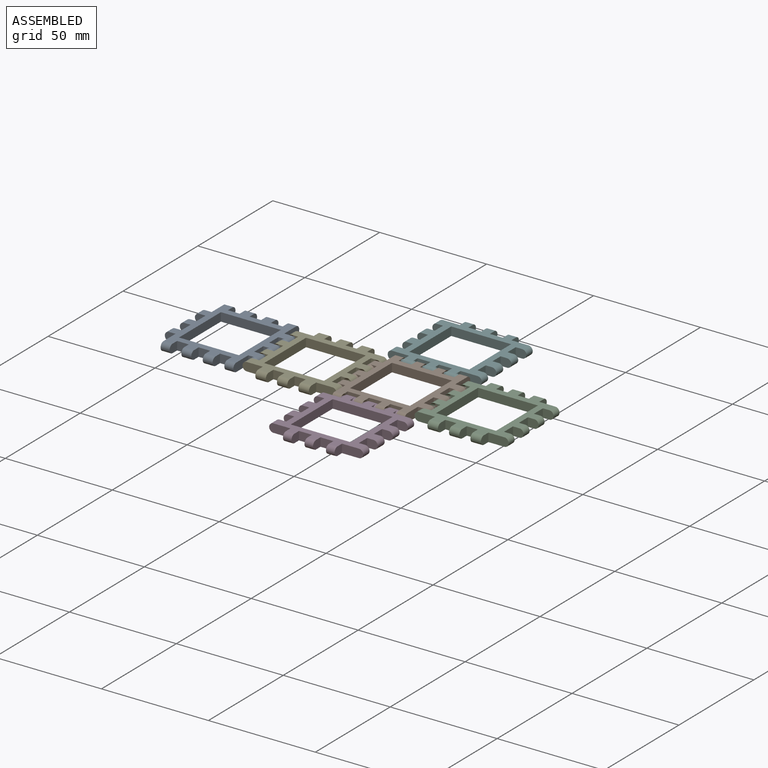
[diagram: assembled view]
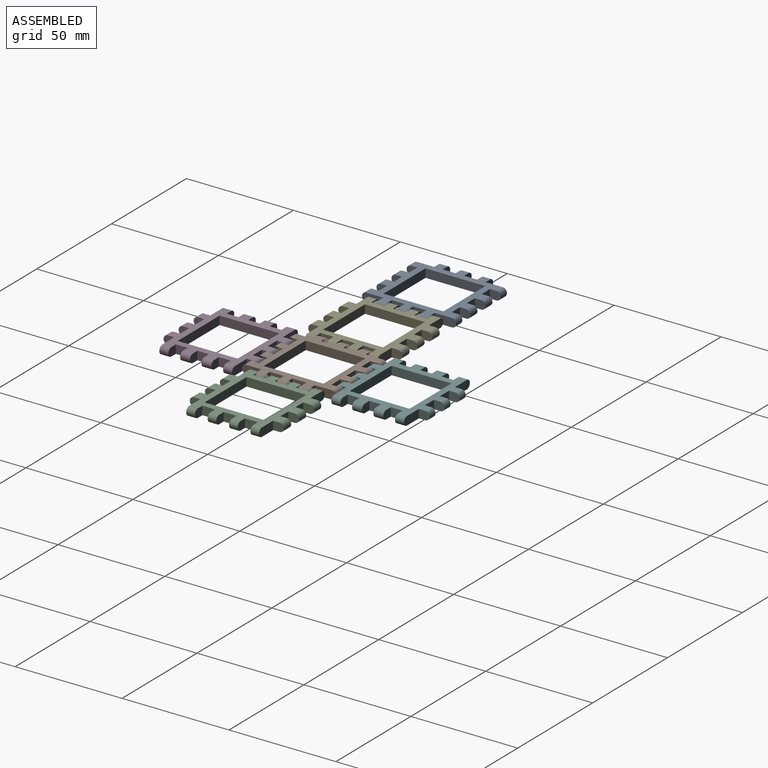
[diagram: assembled view, second angle]
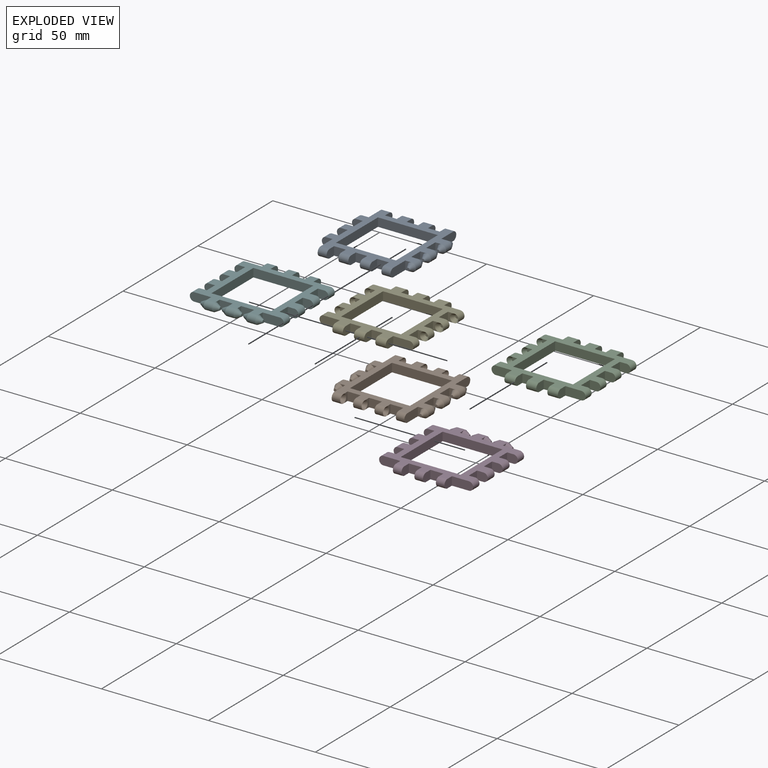
[diagram: exploded view]
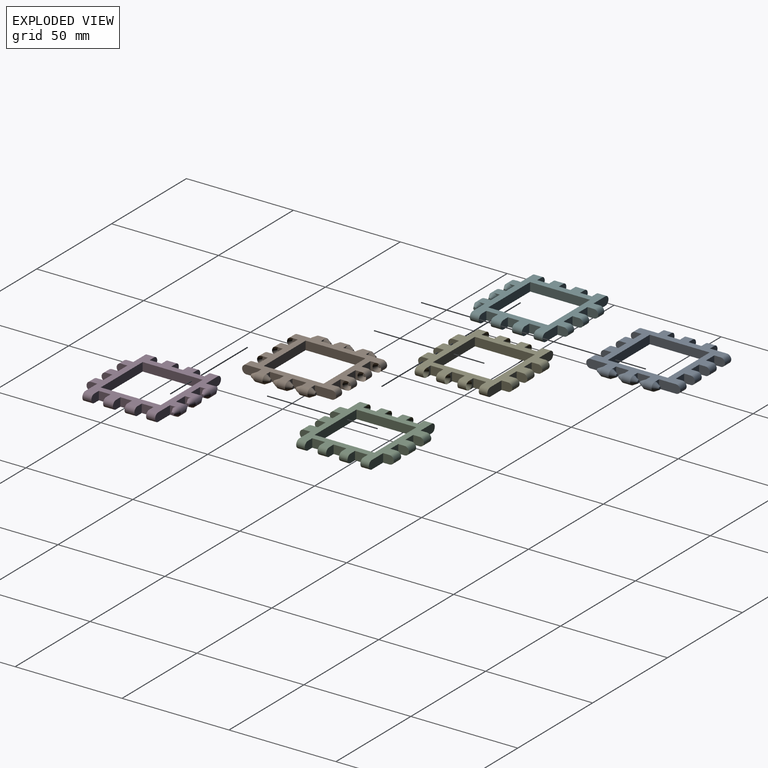
[diagram: exploded view, second angle]
ASSEMBLY  parts=6 mates=5
PART A: 70 faces, bbox 44x44x4 mm
  f0: plane 4x3mm, normal (0,-1,0), area 5.7mm2, adj f16,f42,f43,f66
  f1: plane 4x3mm, normal (0,-1,0), area 5.7mm2, adj f14,f42,f43,f62
  f2: plane 28x4mm, normal (-1,0,0), area 112mm2, adj f3,f41,f42,f43
  f3: plane 28x4mm, normal (0,1,0), area 112mm2, adj f2,f4,f42,f43
  f4: plane 28x4mm, normal (1,0,0), area 112mm2, adj f3,f41,f42,f43
  f5: plane 5x4mm, normal (1,0,0), area 18.3mm2, adj f6,f42,f43,f53
  f6: plane 5.4x4mm, normal (0,-1,0), area 21.6mm2, adj f5,f7,f42,f43
  f7: plane 5x4mm, normal (-1,0,0), area 18.3mm2, adj f6,f42,f43,f51
  f8: plane 5x4mm, normal (1,0,0), area 18.3mm2, adj f9,f42,f43,f51
  f9: plane 5.5x4mm, normal (0,-1,0), area 22mm2, adj f8,f10,f42,f43
  f10: plane 5x4mm, normal (-1,0,0), area 18.3mm2, adj f9,f42,f43,f50
  f11: plane 9.95x4mm, normal (1,0,0), area 38.1mm2, adj f12,f42,f43,f50
  f12: plane 4x3mm, normal (0,-1,0), area 5.7mm2, adj f11,f42,f43,f58
  f13: plane 4x3mm, normal (0,1,0), area 5.7mm2, adj f14,f42,f43,f60
  f14: plane 6.05x4mm, normal (1,0,0), area 24.2mm2, adj f1,f13,f42,f43
  f15: plane 4x3mm, normal (0,1,0), area 5.7mm2, adj f16,f42,f43,f64
  f16: plane 6.05x4mm, normal (1,0,0), area 24.2mm2, adj f0,f15,f42,f43
  f17: plane 4x3mm, normal (0,1,0), area 5.7mm2, adj f18,f42,f43,f68
  f18: plane 9.95x4mm, normal (1,0,0), area 38.1mm2, adj f17,f42,f43,f54
  f19: plane 5x4mm, normal (-1,0,0), area 18.3mm2, adj f20,f42,f43,f54
  f20: plane 5.5x4mm, normal (0,1,0), area 22mm2, adj f19,f21,f42,f43
  f21: plane 5x4mm, normal (1,0,0), area 18.3mm2, adj f20,f42,f43,f55
  f22: plane 5x4mm, normal (-1,0,0), area 18.3mm2, adj f23,f42,f43,f55
  f23: plane 5.4x4mm, normal (0,1,0), area 21.6mm2, adj f22,f24,f42,f43
  f24: plane 5x4mm, normal (1,0,0), area 18.3mm2, adj f23,f42,f43,f57
  f25: plane 5x4mm, normal (-1,0,0), area 18.3mm2, adj f26,f42,f43,f57
  f26: plane 5.5x4mm, normal (0,1,0), area 22mm2, adj f25,f27,f42,f43
  f27: plane 5x4mm, normal (1,0,0), area 18.3mm2, adj f26,f42,f43,f56
  f28: plane 9.95x4mm, normal (-1,0,0), area 38.1mm2, adj f29,f42,f43,f56
  f29: plane 5x4mm, normal (0,1,0), area 18.3mm2, adj f28,f42,f43,f49
  f30: plane 5x4mm, normal (0,-1,0), area 18.3mm2, adj f31,f42,f43,f49
  f31: plane 6.05x4mm, normal (-1,0,0), area 24.2mm2, adj f30,f32,f42,f43
  f32: plane 5x4mm, normal (0,1,0), area 18.3mm2, adj f31,f42,f43,f48
  f33: plane 5x4mm, normal (0,-1,0), area 18.3mm2, adj f34,f42,f43,f48
  f34: plane 6.05x4mm, normal (-1,0,0), area 24.2mm2, adj f33,f35,f42,f43
  f35: plane 5x4mm, normal (0,1,0), area 18.3mm2, adj f34,f42,f43,f47
  f36: plane 5x4mm, normal (0,-1,0), area 18.3mm2, adj f37,f42,f43,f47
  f37: plane 9.95x4mm, normal (-1,0,0), area 38.1mm2, adj f36,f42,f43,f52
  f38: plane 5x4mm, normal (1,0,0), area 18.3mm2, adj f39,f42,f43,f52
  f39: plane 5.5x4mm, normal (0,-1,0), area 22mm2, adj f38,f40,f42,f43
  f40: plane 5x4mm, normal (-1,0,0), area 18.3mm2, adj f39,f42,f43,f53
  f41: plane 28x4mm, normal (0,-1,0), area 112mm2, adj f2,f4,f42,f43
  f42: plane 40x40mm, normal (0,0,1), area 549.6mm2, adj f0,f1,f2,f3,f4,f5,f6,f7
  f43: plane 40x40mm, normal (0,0,-1), area 549.6mm2, adj f0,f1,f2,f3,f4,f5,f6,f7
  f44: cylinder r=2mm len=4mm, axis (0,-1,0), area 25.1mm2, adj f42,f43,f58,f60
  f45: cylinder r=2mm len=4mm, axis (0,-1,0), area 25.1mm2, adj f42,f43,f62,f64
  f46: cylinder r=2mm len=4mm, axis (0,-1,0), area 25.1mm2, adj f42,f43,f66,f68
  f47: cylinder r=2mm len=4mm, axis (0,-1,0), area 25.1mm2, adj f35,f36,f42,f43
  f48: cylinder r=2mm len=4mm, axis (0,-1,0), area 25.1mm2, adj f32,f33,f42,f43
  f49: cylinder r=2mm len=4mm, axis (0,-1,0), area 25.1mm2, adj f29,f30,f42,f43
  f50: cylinder r=2mm len=4.2mm, axis (1,0,0), area 26.4mm2, adj f10,f11,f42,f43
  f51: cylinder r=2mm len=4.6mm, axis (1,0,0), area 28.9mm2, adj f7,f8,f42,f43
  f52: cylinder r=2mm len=4.2mm, axis (-1,0,0), area 26.4mm2, adj f37,f38,f42,f43
  f53: cylinder r=2mm len=4.6mm, axis (-1,0,0), area 28.9mm2, adj f5,f40,f42,f43
  f54: cylinder r=2mm len=4.2mm, axis (1,0,0), area 26.4mm2, adj f18,f19,f42,f43
  f55: cylinder r=2mm len=4.6mm, axis (1,0,0), area 28.9mm2, adj f21,f22,f42,f43
  f56: cylinder r=2mm len=4.2mm, axis (-1,0,0), area 26.4mm2, adj f27,f28,f42,f43
  f57: cylinder r=2mm len=4.6mm, axis (-1,0,0), area 28.9mm2, adj f24,f25,f42,f43
  f58: cone r=2mm half-angle=28.4deg, axis (0,1,0), area 23.5mm2, adj f12,f44,f59
  f59: plane 1.34x1.34mm, normal (0,-1,0), area 1.4mm2, adj f58
  f60: cone r=2mm half-angle=28.4deg, axis (0,-1,0), area 23.5mm2, adj f13,f44,f61
  f61: plane 1.34x1.34mm, normal (0,1,0), area 1.4mm2, adj f60
  f62: cone r=2mm half-angle=28.4deg, axis (0,1,0), area 23.5mm2, adj f1,f45,f63
  f63: plane 1.34x1.34mm, normal (0,-1,0), area 1.4mm2, adj f62
  f64: cone r=2mm half-angle=28.4deg, axis (0,-1,0), area 23.5mm2, adj f15,f45,f65
  f65: plane 1.34x1.34mm, normal (0,1,0), area 1.4mm2, adj f64
  f66: cone r=2mm half-angle=28.4deg, axis (0,1,0), area 23.5mm2, adj f0,f46,f67
  f67: plane 1.34x1.34mm, normal (0,-1,0), area 1.4mm2, adj f66
  f68: cone r=2mm half-angle=28.4deg, axis (0,-1,0), area 23.5mm2, adj f17,f46,f69
  f69: plane 1.34x1.34mm, normal (0,1,0), area 1.4mm2, adj f68
PART B: 112 faces, bbox 44x44x4 mm
  f0: plane 6.5x4mm, normal (-1,0,0), area 26mm2, adj f1,f41,f42,f43
  f1: plane 4x3mm, normal (0,1,0), area 5.7mm2, adj f0,f42,f43,f72
  f2: plane 4x3mm, normal (0,-1,0), area 5.7mm2, adj f3,f42,f43,f70
  f3: plane 9.05x4mm, normal (-1,0,0), area 34.5mm2, adj f2,f42,f43,f50
  f4: plane 4x3mm, normal (1,0,0), area 5.7mm2, adj f5,f42,f43,f106
  f5: plane 6x4mm, normal (0,-1,0), area 24mm2, adj f4,f6,f42,f43
  f6: plane 4x3mm, normal (-1,0,0), area 5.7mm2, adj f5,f42,f43,f104
  f7: plane 4x3mm, normal (1,0,0), area 5.7mm2, adj f8,f42,f43,f108
  f8: plane 6x4mm, normal (0,-1,0), area 24mm2, adj f7,f9,f42,f43
  f9: plane 4x3mm, normal (-1,0,0), area 5.7mm2, adj f8,f42,f43,f101
  f10: plane 4x3mm, normal (1,0,0), area 5.7mm2, adj f11,f42,f43,f110
  f11: plane 6x4mm, normal (0,-1,0), area 24mm2, adj f10,f12,f42,f43
  f12: plane 4x3mm, normal (-1,0,0), area 5.7mm2, adj f11,f42,f43,f98
  f13: plane 9.05x4mm, normal (1,0,0), area 34.5mm2, adj f14,f42,f43,f53
  f14: plane 4x3mm, normal (0,-1,0), area 5.7mm2, adj f13,f42,f43,f58
  f15: plane 4x3mm, normal (0,1,0), area 5.7mm2, adj f16,f42,f43,f60
  f16: plane 6.5x4mm, normal (1,0,0), area 26mm2, adj f15,f17,f42,f43
  f17: plane 4x3mm, normal (0,-1,0), area 5.7mm2, adj f16,f42,f43,f62
  f18: plane 4x3mm, normal (0,1,0), area 5.7mm2, adj f19,f42,f43,f66
  f19: plane 6.5x4mm, normal (1,0,0), area 26mm2, adj f18,f20,f42,f43
  f20: plane 4x3mm, normal (0,-1,0), area 5.7mm2, adj f19,f42,f43,f64
  f21: plane 4x3mm, normal (0,1,0), area 5.7mm2, adj f22,f42,f43,f68
  f22: plane 9.95x4mm, normal (1,0,0), area 38.1mm2, adj f21,f42,f43,f57
  f23: plane 4x3mm, normal (-1,0,0), area 5.7mm2, adj f24,f42,f43,f83
  f24: plane 6x4mm, normal (0,1,0), area 24mm2, adj f23,f25,f42,f43
  f25: plane 4x3mm, normal (1,0,0), area 5.7mm2, adj f24,f42,f43,f95
  f26: plane 4x3mm, normal (-1,0,0), area 5.7mm2, adj f27,f42,f43,f86
  f27: plane 6x4mm, normal (0,1,0), area 24mm2, adj f26,f28,f42,f43
  f28: plane 4x3mm, normal (1,0,0), area 5.7mm2, adj f27,f42,f43,f93
  f29: plane 4x3mm, normal (-1,0,0), area 5.7mm2, adj f30,f42,f43,f89
  f30: plane 6x4mm, normal (0,1,0), area 24mm2, adj f29,f31,f42,f43
  f31: plane 4x3mm, normal (1,0,0), area 5.7mm2, adj f30,f42,f43,f91
  f32: plane 9.95x4mm, normal (-1,0,0), area 38.1mm2, adj f33,f42,f43,f54
  f33: plane 4x3mm, normal (0,1,0), area 5.7mm2, adj f32,f42,f43,f80
  f34: plane 4x3mm, normal (0,-1,0), area 5.7mm2, adj f35,f42,f43,f76
  f35: plane 6.5x4mm, normal (-1,0,0), area 26mm2, adj f34,f36,f42,f43
  f36: plane 4x3mm, normal (0,1,0), area 5.7mm2, adj f35,f42,f43,f78
  f37: plane 28x4mm, normal (-1,0,0), area 112mm2, adj f38,f40,f42,f43
  f38: plane 28x4mm, normal (0,1,0), area 112mm2, adj f37,f39,f42,f43
  f39: plane 28x4mm, normal (1,0,0), area 112mm2, adj f38,f40,f42,f43
  f40: plane 28x4mm, normal (0,-1,0), area 112mm2, adj f37,f39,f42,f43
  f41: plane 4x3mm, normal (0,-1,0), area 5.7mm2, adj f0,f42,f43,f74
  f42: plane 40x40mm, normal (0,0,1), area 540mm2, adj f0,f1,f2,f3,f4,f5,f6,f7
  f43: plane 40x40mm, normal (0,0,-1), area 540mm2, adj f0,f1,f2,f3,f4,f5,f6,f7
  f44: cylinder r=2mm len=4mm, axis (0,-1,0), area 25.1mm2, adj f42,f43,f58,f60
  f45: cylinder r=2mm len=4mm, axis (0,-1,0), area 25.1mm2, adj f42,f43,f62,f66
  f46: cylinder r=2mm len=4mm, axis (0,-1,0), area 25.1mm2, adj f42,f43,f64,f68
  f47: cylinder r=2mm len=4mm, axis (0,-1,0), area 25.1mm2, adj f42,f43,f70,f72
  f48: cylinder r=2mm len=4mm, axis (0,-1,0), area 25.1mm2, adj f42,f43,f74,f78
  f49: cylinder r=2mm len=4mm, axis (0,-1,0), area 25.1mm2, adj f42,f43,f76,f80
  f50: cylinder r=2mm len=4mm, axis (-1,0,0), area 25.1mm2, adj f3,f42,f43,f106
  f51: cylinder r=2mm len=4mm, axis (-1,0,0), area 25.1mm2, adj f42,f43,f103,f108
  f52: cylinder r=2mm len=4mm, axis (-1,0,0), area 25.1mm2, adj f42,f43,f100,f110
  f53: cylinder r=2mm len=4mm, axis (-1,0,0), area 25.1mm2, adj f13,f42,f43,f97
  f54: cylinder r=2mm len=4mm, axis (-1,0,0), area 25.1mm2, adj f32,f42,f43,f91
  f55: cylinder r=2mm len=4mm, axis (-1,0,0), area 25.1mm2, adj f42,f43,f88,f93
  f56: cylinder r=2mm len=4mm, axis (-1,0,0), area 25.1mm2, adj f42,f43,f85,f95
  f57: cylinder r=2mm len=4mm, axis (-1,0,0), area 25.1mm2, adj f22,f42,f43,f82
  f58: cone r=2mm half-angle=28.4deg, axis (0,1,0), area 23.5mm2, adj f14,f44,f59
  f59: plane 1.34x1.34mm, normal (0,-1,0), area 1.4mm2, adj f58
  f60: cone r=2mm half-angle=28.4deg, axis (0,-1,0), area 23.5mm2, adj f15,f44,f61
  f61: plane 1.34x1.34mm, normal (0,1,0), area 1.4mm2, adj f60
  f62: cone r=2mm half-angle=28.4deg, axis (0,1,0), area 23.5mm2, adj f17,f45,f63
  f63: plane 1.34x1.34mm, normal (0,-1,0), area 1.4mm2, adj f62
  f64: cone r=2mm half-angle=28.4deg, axis (0,1,0), area 23.5mm2, adj f20,f46,f65
  f65: plane 1.34x1.34mm, normal (0,-1,0), area 1.4mm2, adj f64
  f66: cone r=2mm half-angle=28.4deg, axis (0,-1,0), area 23.5mm2, adj f18,f45,f67
  f67: plane 1.34x1.34mm, normal (0,1,0), area 1.4mm2, adj f66
  f68: cone r=2mm half-angle=28.4deg, axis (0,-1,0), area 23.5mm2, adj f21,f46,f69
  f69: plane 1.34x1.34mm, normal (0,1,0), area 1.4mm2, adj f68
  f70: cone r=2mm half-angle=28.4deg, axis (0,1,0), area 23.5mm2, adj f2,f47,f71
  f71: plane 1.34x1.34mm, normal (0,-1,0), area 1.4mm2, adj f70
  f72: cone r=2mm half-angle=28.4deg, axis (0,-1,0), area 23.5mm2, adj f1,f47,f73
  f73: plane 1.34x1.34mm, normal (0,1,0), area 1.4mm2, adj f72
  f74: cone r=2mm half-angle=28.4deg, axis (0,1,0), area 23.5mm2, adj f41,f48,f75
  f75: plane 1.34x1.34mm, normal (0,-1,0), area 1.4mm2, adj f74
  f76: cone r=2mm half-angle=28.4deg, axis (0,1,0), area 23.5mm2, adj f34,f49,f77
  f77: plane 1.34x1.34mm, normal (0,-1,0), area 1.4mm2, adj f76
  f78: cone r=2mm half-angle=28.4deg, axis (0,-1,0), area 23.5mm2, adj f36,f48,f79
  f79: plane 1.34x1.34mm, normal (0,1,0), area 1.4mm2, adj f78
  f80: cone r=2mm half-angle=28.4deg, axis (0,-1,0), area 23.5mm2, adj f33,f49,f81
  f81: plane 1.34x1.34mm, normal (0,1,0), area 1.4mm2, adj f80
  f82: cone r=2mm half-angle=33.7deg, axis (-1,0,0), area 9.5mm2, adj f57,f83,f84
  f83: bspline ~4.01x2.17mm, area 9.5mm2, adj f23,f82,f84
  f84: plane 1.6x1.6mm, normal (-1,0,0), area 2mm2, adj f82,f83
  f85: cone r=2mm half-angle=33.7deg, axis (-1,0,0), area 9.5mm2, adj f56,f86,f87
  f86: bspline ~4.01x2.17mm, area 9.5mm2, adj f26,f85,f87
  f87: plane 1.6x1.6mm, normal (-1,0,0), area 2mm2, adj f85,f86
  f88: cone r=2mm half-angle=33.7deg, axis (-1,0,0), area 9.5mm2, adj f55,f89,f90
  f89: bspline ~4.01x2.17mm, area 9.5mm2, adj f29,f88,f90
  f90: plane 1.6x1.6mm, normal (-1,0,0), area 2mm2, adj f88,f89
  f91: cone r=2mm half-angle=33.7deg, axis (1,0,0), area 19mm2, adj f31,f54,f92
  f92: plane 1.6x1.6mm, normal (1,0,0), area 2mm2, adj f91
  f93: cone r=2mm half-angle=33.7deg, axis (1,0,0), area 19mm2, adj f28,f55,f94
  f94: plane 1.6x1.6mm, normal (1,0,0), area 2mm2, adj f93
  f95: cone r=2mm half-angle=33.7deg, axis (1,0,0), area 19mm2, adj f25,f56,f96
  f96: plane 1.6x1.6mm, normal (1,0,0), area 2mm2, adj f95
  f97: cone r=2mm half-angle=33.7deg, axis (-1,0,0), area 9.5mm2, adj f53,f98,f99
  f98: bspline ~4.01x2.17mm, area 9.5mm2, adj f12,f97,f99
  f99: plane 1.6x1.6mm, normal (-1,0,0), area 2mm2, adj f97,f98
  f100: cone r=2mm half-angle=33.7deg, axis (-1,0,0), area 9.5mm2, adj f52,f101,f102
  f101: bspline ~4.01x2.17mm, area 9.5mm2, adj f9,f100,f102
  f102: plane 1.6x1.6mm, normal (-1,0,0), area 2mm2, adj f100,f101
  f103: cone r=2mm half-angle=33.7deg, axis (-1,0,0), area 9.5mm2, adj f51,f104,f105
  f104: bspline ~4.01x2.17mm, area 9.5mm2, adj f6,f103,f105
  f105: plane 1.6x1.6mm, normal (-1,0,0), area 2mm2, adj f103,f104
  f106: cone r=2mm half-angle=33.7deg, axis (1,0,0), area 19mm2, adj f4,f50,f107
  f107: plane 1.6x1.6mm, normal (1,0,0), area 2mm2, adj f106
  f108: cone r=2mm half-angle=33.7deg, axis (1,0,0), area 19mm2, adj f7,f51,f109
  f109: plane 1.6x1.6mm, normal (1,0,0), area 2mm2, adj f108
  f110: cone r=2mm half-angle=33.7deg, axis (1,0,0), area 19mm2, adj f10,f52,f111
  f111: plane 1.6x1.6mm, normal (1,0,0), area 2mm2, adj f110
PART C: 73 faces, bbox 44x44x4 mm
  f0: plane 4x3mm, normal (0,-1,0), area 5.7mm2, adj f28,f42,f43,f65
  f1: plane 4x3mm, normal (0,-1,0), area 5.7mm2, adj f30,f42,f43,f63
  f2: plane 4x3mm, normal (0,-1,0), area 5.7mm2, adj f32,f42,f43,f61
  f3: plane 28x4mm, normal (0,-1,0), area 112mm2, adj f4,f41,f42,f43
  f4: plane 28x4mm, normal (-1,0,0), area 112mm2, adj f3,f5,f42,f43
  f5: plane 28x4mm, normal (0,1,0), area 112mm2, adj f4,f41,f42,f43
  f6: plane 5x4mm, normal (-1,0,0), area 18.3mm2, adj f7,f42,f43,f56
  f7: plane 9.5x4mm, normal (0,1,0), area 36.3mm2, adj f6,f42,f43,f51
  f8: plane 5x4mm, normal (0,-1,0), area 18.3mm2, adj f9,f42,f43,f51
  f9: plane 6x4mm, normal (-1,0,0), area 24mm2, adj f8,f10,f42,f43
  f10: plane 5x4mm, normal (0,1,0), area 18.3mm2, adj f9,f42,f43,f50
  f11: plane 5x4mm, normal (0,-1,0), area 18.3mm2, adj f12,f42,f43,f50
  f12: plane 6x4mm, normal (-1,0,0), area 24mm2, adj f11,f13,f42,f43
  f13: plane 5x4mm, normal (0,1,0), area 18.3mm2, adj f12,f42,f43,f49
  f14: plane 5x4mm, normal (0,-1,0), area 18.3mm2, adj f15,f42,f43,f49
  f15: plane 6x4mm, normal (-1,0,0), area 24mm2, adj f14,f16,f42,f43
  f16: plane 5x4mm, normal (0,1,0), area 18.3mm2, adj f15,f42,f43,f48
  f17: plane 9.5x4mm, normal (0,-1,0), area 36.3mm2, adj f18,f42,f43,f48
  f18: plane 5x4mm, normal (-1,0,0), area 18.3mm2, adj f17,f42,f43,f53
  f19: plane 5x4mm, normal (1,0,0), area 18.3mm2, adj f20,f42,f43,f53
  f20: plane 5.2x4mm, normal (0,-1,0), area 20.8mm2, adj f19,f21,f42,f43
  f21: plane 5x4mm, normal (-1,0,0), area 18.3mm2, adj f20,f42,f43,f54
  f22: plane 5x4mm, normal (1,0,0), area 18.3mm2, adj f23,f42,f43,f54
  f23: plane 5.2x4mm, normal (0,-1,0), area 20.8mm2, adj f22,f24,f42,f43
  f24: plane 5x4mm, normal (-1,0,0), area 18.3mm2, adj f23,f42,f43,f52
  f25: plane 5x4mm, normal (1,0,0), area 18.3mm2, adj f26,f42,f43,f52
  f26: plane 9.5x4mm, normal (0,-1,0), area 36.3mm2, adj f25,f42,f43,f44
  f27: plane 4x3mm, normal (0,1,0), area 5.7mm2, adj f28,f42,f43,f59
  f28: plane 6x4mm, normal (1,0,0), area 24mm2, adj f0,f27,f42,f43
  f29: plane 4x3mm, normal (0,1,0), area 5.7mm2, adj f30,f42,f43,f68
  f30: plane 6x4mm, normal (1,0,0), area 24mm2, adj f1,f29,f42,f43
  f31: plane 4x3mm, normal (0,1,0), area 5.7mm2, adj f32,f42,f43,f71
  f32: plane 6x4mm, normal (1,0,0), area 24mm2, adj f2,f31,f42,f43
  f33: plane 9.5x4mm, normal (0,1,0), area 36.3mm2, adj f34,f42,f43,f47
  f34: plane 5x4mm, normal (1,0,0), area 18.3mm2, adj f33,f42,f43,f55
  f35: plane 5x4mm, normal (-1,0,0), area 18.3mm2, adj f36,f42,f43,f55
  f36: plane 5.2x4mm, normal (0,1,0), area 20.8mm2, adj f35,f37,f42,f43
  f37: plane 5x4mm, normal (1,0,0), area 18.3mm2, adj f36,f42,f43,f57
  f38: plane 5x4mm, normal (-1,0,0), area 18.3mm2, adj f39,f42,f43,f57
  f39: plane 5.2x4mm, normal (0,1,0), area 20.8mm2, adj f38,f40,f42,f43
  f40: plane 5x4mm, normal (1,0,0), area 18.3mm2, adj f39,f42,f43,f56
  f41: plane 28x4mm, normal (1,0,0), area 112mm2, adj f3,f5,f42,f43
  f42: plane 40x40mm, normal (0,0,1), area 555.6mm2, adj f0,f1,f2,f3,f4,f5,f6,f7
  f43: plane 40x40mm, normal (0,0,-1), area 555.6mm2, adj f0,f1,f2,f3,f4,f5,f6,f7
  f44: cylinder r=2mm len=4mm, axis (0,-1,0), area 25.1mm2, adj f26,f42,f43,f58
  f45: cylinder r=2mm len=4mm, axis (0,-1,0), area 25.1mm2, adj f42,f43,f65,f67
  f46: cylinder r=2mm len=4mm, axis (0,-1,0), area 25.1mm2, adj f42,f43,f63,f70
  f47: cylinder r=2mm len=4mm, axis (0,-1,0), area 25.1mm2, adj f33,f42,f43,f61
  f48: cylinder r=2mm len=4mm, axis (0,-1,0), area 25.1mm2, adj f16,f17,f42,f43
  f49: cylinder r=2mm len=4mm, axis (0,-1,0), area 25.1mm2, adj f13,f14,f42,f43
  f50: cylinder r=2mm len=4mm, axis (0,-1,0), area 25.1mm2, adj f10,f11,f42,f43
  f51: cylinder r=2mm len=4mm, axis (0,-1,0), area 25.1mm2, adj f7,f8,f42,f43
  f52: cylinder r=2mm len=4.9mm, axis (1,0,0), area 30.8mm2, adj f24,f25,f42,f43
  f53: cylinder r=2mm len=4.9mm, axis (-1,0,0), area 30.8mm2, adj f18,f19,f42,f43
  f54: cylinder r=2mm len=4.8mm, axis (1,0,0), area 30.2mm2, adj f21,f22,f42,f43
  f55: cylinder r=2mm len=4.9mm, axis (1,0,0), area 30.8mm2, adj f34,f35,f42,f43
  f56: cylinder r=2mm len=4.9mm, axis (-1,0,0), area 30.8mm2, adj f6,f40,f42,f43
  f57: cylinder r=2mm len=4.8mm, axis (1,0,0), area 30.2mm2, adj f37,f38,f42,f43
  f58: cone r=2mm half-angle=33.7deg, axis (0,1,0), area 9.5mm2, adj f44,f59,f60
  f59: bspline ~4.01x2.17mm, area 9.5mm2, adj f27,f58,f60
  f60: plane 1.6x1.6mm, normal (0,1,0), area 2mm2, adj f58,f59
  f61: cone r=2mm half-angle=33.7deg, axis (0,-1,0), area 19mm2, adj f2,f47,f62
  f62: plane 1.6x1.6mm, normal (0,-1,0), area 2mm2, adj f61
  f63: cone r=2mm half-angle=33.7deg, axis (0,-1,0), area 19mm2, adj f1,f46,f64
  f64: plane 1.6x1.6mm, normal (0,-1,0), area 2mm2, adj f63
  f65: cone r=2mm half-angle=33.7deg, axis (0,-1,0), area 19mm2, adj f0,f45,f66
  f66: plane 1.6x1.6mm, normal (0,-1,0), area 2mm2, adj f65
  f67: cone r=2mm half-angle=33.7deg, axis (0,1,0), area 9.5mm2, adj f45,f68,f69
  f68: bspline ~4.01x2.17mm, area 9.5mm2, adj f29,f67,f69
  f69: plane 1.6x1.6mm, normal (0,1,0), area 2mm2, adj f67,f68
  f70: cone r=2mm half-angle=33.7deg, axis (0,1,0), area 9.5mm2, adj f46,f71,f72
  f71: bspline ~4.01x2.17mm, area 9.5mm2, adj f31,f70,f72
  f72: plane 1.6x1.6mm, normal (0,1,0), area 2mm2, adj f70,f71
PART D: same geometry as A
PART E: 88 faces, bbox 44x44x4 mm
  f0: plane 4x3mm, normal (0,-1,0), area 5.7mm2, adj f31,f42,f43,f86
  f1: plane 4x3mm, normal (0,-1,0), area 5.7mm2, adj f29,f42,f43,f84
  f2: plane 4x3mm, normal (0,-1,0), area 5.7mm2, adj f27,f42,f43,f82
  f3: plane 4x3mm, normal (0,-1,0), area 5.7mm2, adj f12,f42,f43,f71
  f4: plane 4x3mm, normal (0,-1,0), area 5.7mm2, adj f14,f42,f43,f69
  f5: plane 4x3mm, normal (0,-1,0), area 5.7mm2, adj f16,f42,f43,f67
  f6: plane 28x4mm, normal (-1,0,0), area 112mm2, adj f7,f41,f42,f43
  f7: plane 28x4mm, normal (0,1,0), area 112mm2, adj f6,f8,f42,f43
  f8: plane 28x4mm, normal (1,0,0), area 112mm2, adj f7,f41,f42,f43
  f9: plane 5x4mm, normal (1,0,0), area 18.3mm2, adj f10,f42,f43,f52
  f10: plane 9.5x4mm, normal (0,-1,0), area 36.3mm2, adj f9,f42,f43,f44
  f11: plane 4x3mm, normal (0,1,0), area 5.7mm2, adj f12,f42,f43,f59
  f12: plane 6x4mm, normal (1,0,0), area 24mm2, adj f3,f11,f42,f43
  f13: plane 4x3mm, normal (0,1,0), area 5.7mm2, adj f14,f42,f43,f62
  f14: plane 6x4mm, normal (1,0,0), area 24mm2, adj f4,f13,f42,f43
  f15: plane 4x3mm, normal (0,1,0), area 5.7mm2, adj f16,f42,f43,f65
  f16: plane 6x4mm, normal (1,0,0), area 24mm2, adj f5,f15,f42,f43
  f17: plane 9.5x4mm, normal (0,1,0), area 36.3mm2, adj f18,f42,f43,f47
  f18: plane 5x4mm, normal (1,0,0), area 18.3mm2, adj f17,f42,f43,f55
  f19: plane 5x4mm, normal (-1,0,0), area 18.3mm2, adj f20,f42,f43,f55
  f20: plane 5.2x4mm, normal (0,1,0), area 20.8mm2, adj f19,f21,f42,f43
  f21: plane 5x4mm, normal (1,0,0), area 18.3mm2, adj f20,f42,f43,f57
  f22: plane 5x4mm, normal (-1,0,0), area 18.3mm2, adj f23,f42,f43,f57
  f23: plane 5.2x4mm, normal (0,1,0), area 20.8mm2, adj f22,f24,f42,f43
  f24: plane 5x4mm, normal (1,0,0), area 18.3mm2, adj f23,f42,f43,f56
  f25: plane 5x4mm, normal (-1,0,0), area 18.3mm2, adj f26,f42,f43,f56
  f26: plane 9.5x4mm, normal (0,1,0), area 36.3mm2, adj f25,f42,f43,f51
  f27: plane 6x4mm, normal (-1,0,0), area 24mm2, adj f2,f28,f42,f43
  f28: plane 4x3mm, normal (0,1,0), area 5.7mm2, adj f27,f42,f43,f80
  f29: plane 6x4mm, normal (-1,0,0), area 24mm2, adj f1,f30,f42,f43
  f30: plane 4x3mm, normal (0,1,0), area 5.7mm2, adj f29,f42,f43,f77
  f31: plane 6x4mm, normal (-1,0,0), area 24mm2, adj f0,f32,f42,f43
  f32: plane 4x3mm, normal (0,1,0), area 5.7mm2, adj f31,f42,f43,f74
  f33: plane 9.5x4mm, normal (0,-1,0), area 36.3mm2, adj f34,f42,f43,f48
  f34: plane 5x4mm, normal (-1,0,0), area 18.3mm2, adj f33,f42,f43,f53
  f35: plane 5x4mm, normal (1,0,0), area 18.3mm2, adj f36,f42,f43,f53
  f36: plane 5.2x4mm, normal (0,-1,0), area 20.8mm2, adj f35,f37,f42,f43
  f37: plane 5x4mm, normal (-1,0,0), area 18.3mm2, adj f36,f42,f43,f54
  f38: plane 5x4mm, normal (1,0,0), area 18.3mm2, adj f39,f42,f43,f54
  f39: plane 5.2x4mm, normal (0,-1,0), area 20.8mm2, adj f38,f40,f42,f43
  f40: plane 5x4mm, normal (-1,0,0), area 18.3mm2, adj f39,f42,f43,f52
  f41: plane 28x4mm, normal (0,-1,0), area 112mm2, adj f6,f8,f42,f43
  f42: plane 40x40mm, normal (0,0,1), area 555.6mm2, adj f0,f1,f2,f3,f4,f5,f6,f7
  f43: plane 40x40mm, normal (0,0,-1), area 555.6mm2, adj f0,f1,f2,f3,f4,f5,f6,f7
  f44: cylinder r=2mm len=4mm, axis (0,-1,0), area 25.1mm2, adj f10,f42,f43,f58
  f45: cylinder r=2mm len=4mm, axis (0,-1,0), area 25.1mm2, adj f42,f43,f61,f71
  f46: cylinder r=2mm len=4mm, axis (0,-1,0), area 25.1mm2, adj f42,f43,f64,f69
  f47: cylinder r=2mm len=4mm, axis (0,-1,0), area 25.1mm2, adj f17,f42,f43,f67
  f48: cylinder r=2mm len=4mm, axis (0,-1,0), area 25.1mm2, adj f33,f42,f43,f73
  f49: cylinder r=2mm len=4mm, axis (0,-1,0), area 25.1mm2, adj f42,f43,f76,f86
  f50: cylinder r=2mm len=4mm, axis (0,-1,0), area 25.1mm2, adj f42,f43,f79,f84
  f51: cylinder r=2mm len=4mm, axis (0,-1,0), area 25.1mm2, adj f26,f42,f43,f82
  f52: cylinder r=2mm len=4.9mm, axis (1,0,0), area 30.8mm2, adj f9,f40,f42,f43
  f53: cylinder r=2mm len=4.9mm, axis (-1,0,0), area 30.8mm2, adj f34,f35,f42,f43
  f54: cylinder r=2mm len=4.8mm, axis (1,0,0), area 30.2mm2, adj f37,f38,f42,f43
  f55: cylinder r=2mm len=4.9mm, axis (1,0,0), area 30.8mm2, adj f18,f19,f42,f43
  f56: cylinder r=2mm len=4.9mm, axis (-1,0,0), area 30.8mm2, adj f24,f25,f42,f43
  f57: cylinder r=2mm len=4.8mm, axis (1,0,0), area 30.2mm2, adj f21,f22,f42,f43
  f58: cone r=2mm half-angle=33.7deg, axis (0,1,0), area 9.5mm2, adj f44,f59,f60
  f59: bspline ~4.01x2.17mm, area 9.5mm2, adj f11,f58,f60
  f60: plane 1.6x1.6mm, normal (0,1,0), area 2mm2, adj f58,f59
  f61: cone r=2mm half-angle=33.7deg, axis (0,1,0), area 9.5mm2, adj f45,f62,f63
  f62: bspline ~4.01x2.17mm, area 9.5mm2, adj f13,f61,f63
  f63: plane 1.6x1.6mm, normal (0,1,0), area 2mm2, adj f61,f62
  f64: cone r=2mm half-angle=33.7deg, axis (0,1,0), area 9.5mm2, adj f46,f65,f66
  f65: bspline ~4.01x2.17mm, area 9.5mm2, adj f15,f64,f66
  f66: plane 1.6x1.6mm, normal (0,1,0), area 2mm2, adj f64,f65
  f67: cone r=2mm half-angle=33.7deg, axis (0,-1,0), area 19mm2, adj f5,f47,f68
  f68: plane 1.6x1.6mm, normal (0,-1,0), area 2mm2, adj f67
  f69: cone r=2mm half-angle=33.7deg, axis (0,-1,0), area 19mm2, adj f4,f46,f70
  f70: plane 1.6x1.6mm, normal (0,-1,0), area 2mm2, adj f69
  f71: cone r=2mm half-angle=33.7deg, axis (0,-1,0), area 19mm2, adj f3,f45,f72
  f72: plane 1.6x1.6mm, normal (0,-1,0), area 2mm2, adj f71
  f73: cone r=2mm half-angle=33.7deg, axis (0,1,0), area 9.5mm2, adj f48,f74,f75
  f74: bspline ~4.01x2.17mm, area 9.5mm2, adj f32,f73,f75
  f75: plane 1.6x1.6mm, normal (0,1,0), area 2mm2, adj f73,f74
  f76: cone r=2mm half-angle=33.7deg, axis (0,1,0), area 9.5mm2, adj f49,f77,f78
  f77: bspline ~4.01x2.17mm, area 9.5mm2, adj f30,f76,f78
  f78: plane 1.6x1.6mm, normal (0,1,0), area 2mm2, adj f76,f77
  f79: cone r=2mm half-angle=33.7deg, axis (0,1,0), area 9.5mm2, adj f50,f80,f81
  f80: bspline ~4.01x2.17mm, area 9.5mm2, adj f28,f79,f81
  f81: plane 1.6x1.6mm, normal (0,1,0), area 2mm2, adj f79,f80
  f82: cone r=2mm half-angle=33.7deg, axis (0,-1,0), area 19mm2, adj f2,f51,f83
  f83: plane 1.6x1.6mm, normal (0,-1,0), area 2mm2, adj f82
  f84: cone r=2mm half-angle=33.7deg, axis (0,-1,0), area 19mm2, adj f1,f50,f85
  f85: plane 1.6x1.6mm, normal (0,-1,0), area 2mm2, adj f84
  f86: cone r=2mm half-angle=33.7deg, axis (0,-1,0), area 19mm2, adj f0,f49,f87
  f87: plane 1.6x1.6mm, normal (0,-1,0), area 2mm2, adj f86
PART F: same geometry as A
PLACE A rot(axis=(0,-1,0),0deg) t=(-80,0.03,0)mm
PLACE B at identity fixed
PLACE C rot(axis=(0,0,1),180deg) t=(40,0.39,0)mm
PLACE D rot(axis=(0,0,1),90deg) t=(0.29,-40,0)mm
PLACE E t=(-40,-0.26,0)mm
PLACE F rot(axis=(0,0,-1),90deg) t=(-0.29,40,0)mm
MATE revolute E.f48 <-> A.f64  axis (0,-1,0) through (-60,14.54,0)mm
MATE revolute B.f44 <-> C.f44  axis (0,-1,0) through (20,5.59,0)mm
MATE revolute B.f50 <-> D.f44  axis (-1,0,0) through (14.8,-20,0)mm
MATE revolute B.f47 <-> E.f44  axis (0,-1,0) through (-20,-15.41,0)mm
MATE revolute F.f44 <-> B.f54  axis (-1,0,0) through (-14.8,20,0)mm
